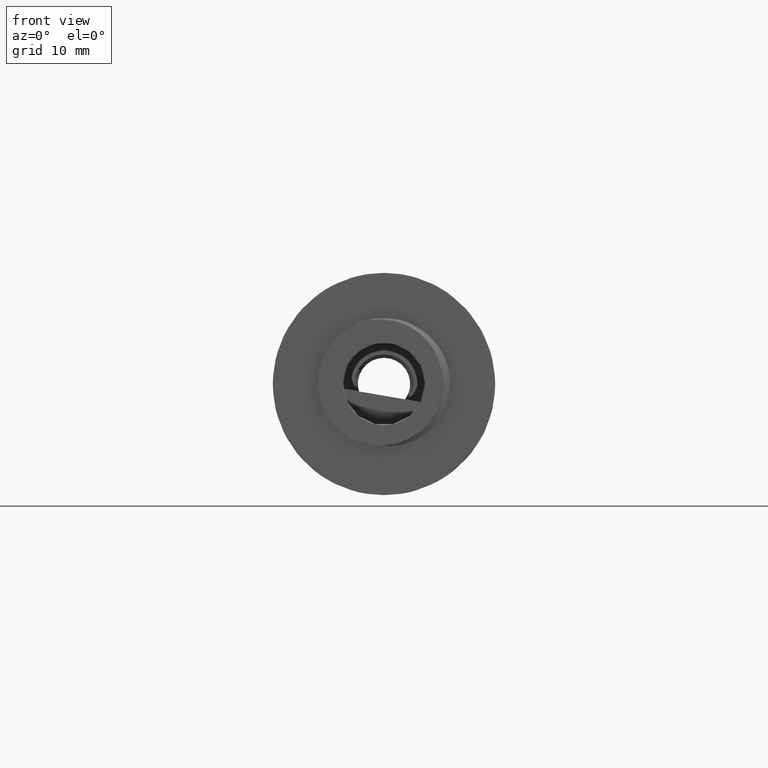
[diagram: clean part render]
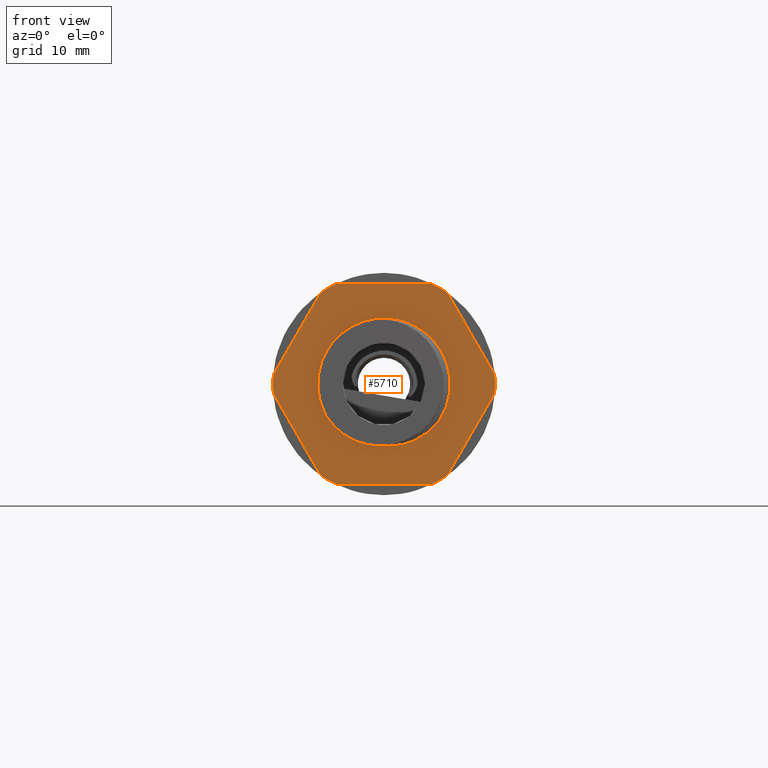
[diagram: same view with one face highlighted and labeled with its STEP entity id]
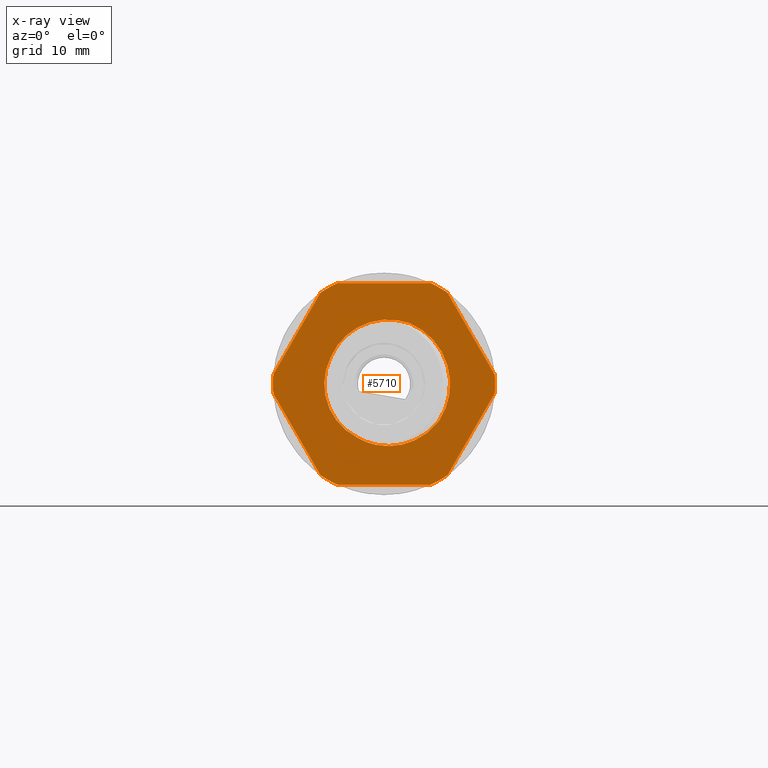
[diagram: x-ray of the same camera — body ghosted, the highlighted face saturated]
A machine part, front view. The second image highlights one B-rep face of the part: STEP entity #5710.
The next image is the same camera in x-ray: the body ghosted, the highlighted face saturated — about 0% of this face is hidden behind the body in this view.
In plain terms, the highlighted planar face has unit normal (0, -1, 0).
Its self-contained STEP definition (entity closure, byte-faithful):
#104 = B_SPLINE_CURVE_WITH_KNOTS ( 'NONE', 3,
 ( #10916, #10910, #10893, #10882, #10905, #10915, #10918, #10914, #10895, #10879, #10906, #10917, #10866, #10881, #10921, #10913, #10911, #10873, #10897, #10885, #10867, #10872 ),
 .UNSPECIFIED., .F., .F.,
 ( 4, 2, 2, 2, 2, 2, 2, 2, 2, 2, 4 ),
 ( 4.753308512845029300E-017, 0.001111364242420281700, 0.001667046363630399400, 0.002222728484840517300, 0.003334092727260750200, 0.004445456969680983500, 0.005556821212101217600, 0.006112503333311335200, 0.006668185454521451800, 0.007779549696941685100, 0.008890913939361916700 ),
 .UNSPECIFIED. ) ;
#135 = B_SPLINE_CURVE_WITH_KNOTS ( 'NONE', 3,
 ( #10828, #10912, #10920, #10880, #10887, #10878, #10899, #10883, #10868, #10869, #10900, #10901, #10884, #10870, #10871, #10874, #10888, #10875, #10891, #10892 ),
 .UNSPECIFIED., .F., .F.,
 ( 4, 2, 2, 2, 2, 2, 2, 2, 2, 4 ),
 ( 9.157138429624037800E-016, 0.001113422710838500700, 0.002226845421676085400, 0.003340268132513672300, 0.003896979487932467100, 0.004453690843351261800, 0.005567113554188848700, 0.006680536265026434800, 0.007793958975864022500, 0.008907381686701609400 ),
 .UNSPECIFIED. ) ;
#136 = B_SPLINE_CURVE_WITH_KNOTS ( 'NONE', 3,
 ( #10961, #10942, #10973, #10970, #10956, #10934, #10954, #10944, #10946, #10976, #10977, #10947, #10925, #10926, #10949, #10951, #10935, #10963 ),
 .UNSPECIFIED., .F., .F.,
 ( 4, 2, 2, 2, 2, 2, 2, 2, 4 ),
 ( 2.638845278160086400E-015, 0.002136493572165413300, 0.003204740358246800500, 0.004272987144328187200, 0.005341233930409574800, 0.005875357323450267800, 0.006409480716490961600, 0.007477727502572348300, 0.008545974288653735900 ),
 .UNSPECIFIED. ) ;
#2858 = FACE_OUTER_BOUND ( 'NONE', #20883, .T. ) ;
#2859 = CARTESIAN_POINT ( 'NONE',  ( -11.25509144583688800, -14.06608847983449600, -10.51000000000000200 ) ) ;
#2861 = DIRECTION ( 'NONE',  ( 0.0000000000000000000, -0.0000000000000000000, -1.000000000000000000 ) ) ;
#2874 = PLANE ( 'NONE',  #20366 ) ;
#2882 = DIRECTION ( 'NONE',  ( 0.0000000000000000000, -1.000000000000000000, 0.0000000000000000000 ) ) ;
#2910 = FACE_BOUND ( 'NONE', #20850, .T. ) ;
#5710 = ADVANCED_FACE ( 'NONE', ( #2910, #2858 ), #2874, .T. ) ;
#6916 = EDGE_CURVE ( 'NONE', #18178, #18218, #7659, .T. ) ;
#6948 = EDGE_CURVE ( 'NONE', #18162, #18151, #7329, .T. ) ;
#6951 = EDGE_CURVE ( 'NONE', #18114, #18159, #7323, .T. ) ;
#6957 = EDGE_CURVE ( 'NONE', #18273, #18254, #7330, .T. ) ;
#6958 = EDGE_CURVE ( 'NONE', #18230, #18273, #10795, .T. ) ;
#6961 = EDGE_CURVE ( 'NONE', #18244, #18275, #7390, .T. ) ;
#6966 = EDGE_CURVE ( 'NONE', #18271, #18244, #104, .T. ) ;
#6968 = EDGE_CURVE ( 'NONE', #18238, #18271, #135, .T. ) ;
#6973 = EDGE_CURVE ( 'NONE', #18275, #18238, #136, .T. ) ;
#6988 = EDGE_CURVE ( 'NONE', #18254, #18232, #11042, .T. ) ;
#6996 = EDGE_CURVE ( 'NONE', #18151, #18114, #11051, .T. ) ;
#6999 = EDGE_CURVE ( 'NONE', #18258, #18162, #11059, .T. ) ;
#7003 = EDGE_CURVE ( 'NONE', #18159, #18178, #11104, .T. ) ;
#7008 = EDGE_CURVE ( 'NONE', #18218, #18248, #11133, .T. ) ;
#7010 = EDGE_CURVE ( 'NONE', #18232, #18258, #7431, .T. ) ;
#7014 = EDGE_CURVE ( 'NONE', #18248, #18230, #7409, .T. ) ;
#7318 = AXIS2_PLACEMENT_3D ( 'NONE', #10765, #10796, #10800 ) ;
#7323 = CIRCLE ( 'NONE', #7325, 10.50000000000000000 ) ;
#7325 = AXIS2_PLACEMENT_3D ( 'NONE', #10775, #10808, #10788 ) ;
#7329 = CIRCLE ( 'NONE', #7318, 10.50000000000000000 ) ;
#7330 = CIRCLE ( 'NONE', #7363, 10.50000000000000000 ) ;
#7343 = VECTOR ( 'NONE', #11112, 1000.000000000000100 ) ;
#7346 = VECTOR ( 'NONE', #11136, 1000.000000000000000 ) ;
#7350 = VECTOR ( 'NONE', #11054, 1000.000000000000000 ) ;
#7353 = VECTOR ( 'NONE', #10833, 1000.000000000000100 ) ;
#7361 = VECTOR ( 'NONE', #11068, 1000.000000000000100 ) ;
#7363 = AXIS2_PLACEMENT_3D ( 'NONE', #10826, #10823, #10848 ) ;
#7376 = AXIS2_PLACEMENT_3D ( 'NONE', #10852, #10829, #10864 ) ;
#7388 = VECTOR ( 'NONE', #11096, 1000.000000000000000 ) ;
#7390 = CIRCLE ( 'NONE', #7376, 6.250000000000023100 ) ;
#7409 = CIRCLE ( 'NONE', #7440, 10.50000000000000000 ) ;
#7431 = CIRCLE ( 'NONE', #7432, 10.50000000000000000 ) ;
#7432 = AXIS2_PLACEMENT_3D ( 'NONE', #11150, #11158, #11159 ) ;
#7440 = AXIS2_PLACEMENT_3D ( 'NONE', #11163, #11151, #11160 ) ;
#7656 = AXIS2_PLACEMENT_3D ( 'NONE', #10617, #10640, #10634 ) ;
#7659 = CIRCLE ( 'NONE', #7656, 10.50000000000000000 ) ;
#10617 = CARTESIAN_POINT ( 'NONE',  ( 3.469446951953614200E-015, -14.06608847983449600, 0.0000000000000000000 ) ) ;
#10634 = DIRECTION ( 'NONE',  ( 0.0000000000000000000, 0.0000000000000000000, 1.000000000000000000 ) ) ;
#10640 = DIRECTION ( 'NONE',  ( -0.0000000000000000000, -1.000000000000000000, -0.0000000000000000000 ) ) ;
#10765 = CARTESIAN_POINT ( 'NONE',  ( 3.469446951953614200E-015, -14.06608847983449600, 0.0000000000000000000 ) ) ;
#10775 = CARTESIAN_POINT ( 'NONE',  ( 3.469446951953614200E-015, -14.06608847983449600, 0.0000000000000000000 ) ) ;
#10788 = DIRECTION ( 'NONE',  ( 6.217248937900878200E-015, 0.0000000000000000000, 1.000000000000000000 ) ) ;
#10795 = LINE ( 'NONE', #10863, #7353 ) ;
#10796 = DIRECTION ( 'NONE',  ( -0.0000000000000000000, -1.000000000000000000, -0.0000000000000000000 ) ) ;
#10800 = DIRECTION ( 'NONE',  ( 0.0000000000000000000, 0.0000000000000000000, 1.000000000000000000 ) ) ;
#10808 = DIRECTION ( 'NONE',  ( -0.0000000000000000000, -1.000000000000000000, -0.0000000000000000000 ) ) ;
#10823 = DIRECTION ( 'NONE',  ( -0.0000000000000000000, -1.000000000000000000, -0.0000000000000000000 ) ) ;
#10826 = CARTESIAN_POINT ( 'NONE',  ( 3.469446951953614200E-015, -14.06608847983449600, 0.0000000000000000000 ) ) ;
#10828 = CARTESIAN_POINT ( 'NONE',  ( -2.556014987226393300, -14.06608847983445400, -5.049390035028454600 ) ) ;
#10829 = DIRECTION ( 'NONE',  ( -0.0000000000000000000, 1.000000000000000000, -0.0000000000000000000 ) ) ;
#10833 = DIRECTION ( 'NONE',  ( -0.5000000000000003300, 0.0000000000000000000, -0.8660254037844383700 ) ) ;
#10848 = DIRECTION ( 'NONE',  ( 0.0000000000000000000, 0.0000000000000000000, 1.000000000000000000 ) ) ;
#10852 = CARTESIAN_POINT ( 'NONE',  ( -0.001271415301873982300, -14.06608847983449600, -0.01986389194044843600 ) ) ;
#10863 = CARTESIAN_POINT ( 'NONE',  ( -5.991173358452394700, -14.06608847983449600, 8.622983346207403700 ) ) ;
#10864 = DIRECTION ( 'NONE',  ( 0.0000000000000000000, 0.0000000000000000000, -1.000000000000000000 ) ) ;
#10866 = CARTESIAN_POINT ( 'NONE',  ( -1.244697211950919900, -14.06608847983450200, 5.865601824258971100 ) ) ;
#10867 = CARTESIAN_POINT ( 'NONE',  ( 2.075953086760118400, -14.06608847983450000, 5.860143918453010400 ) ) ;
#10868 = CARTESIAN_POINT ( 'NONE',  ( -5.093464929041524600, -14.06608847983450000, -2.454278476575086500 ) ) ;
#10869 = CARTESIAN_POINT ( 'NONE',  ( -5.241492948334370200, -14.06608847983450500, -2.116739528690658700 ) ) ;
#10870 = CARTESIAN_POINT ( 'NONE',  ( -5.646079389698330800, -14.06608847983451800, -0.3263330766466495100 ) ) ;
#10871 = CARTESIAN_POINT ( 'NONE',  ( -5.654028654558497500, -14.06608847983449300, 0.04847541841886495600 ) ) ;
#10872 = CARTESIAN_POINT ( 'NONE',  ( 2.430785688772144000, -14.06608847983666700, 5.737531199810977300 ) ) ;
#10873 = CARTESIAN_POINT ( 'NONE',  ( 0.5997918420392075500, -14.06608847983446100, 6.087039369540713500 ) ) ;
#10874 = CARTESIAN_POINT ( 'NONE',  ( -5.597218713415894200, -14.06608847983449500, 0.7824505751103197900 ) ) ;
#10875 = CARTESIAN_POINT ( 'NONE',  ( -5.334761052539318100, -14.06608847983449800, 1.854409501786928600 ) ) ;
#10878 = CARTESIAN_POINT ( 'NONE',  ( -4.530710736436696500, -14.06608847983450200, -3.402839493712816100 ) ) ;
#10879 = CARTESIAN_POINT ( 'NONE',  ( -2.613154575827999300, -14.06608847983449300, 5.283720216108189800 ) ) ;
#10880 = CARTESIAN_POINT ( 'NONE',  ( -3.783189877181321500, -14.06608847983449600, -4.221834685257294800 ) ) ;
#10881 = CARTESIAN_POINT ( 'NONE',  ( -0.6965392576370360600, -14.06608847983450200, 5.984211272495369500 ) ) ;
#10882 = CARTESIAN_POINT ( 'NONE',  ( -4.395645206455665000, -14.06608847983453000, 3.667462700156601100 ) ) ;
#10883 = CARTESIAN_POINT ( 'NONE',  ( -5.011561107928017100, -14.06608847983449100, -2.618608401379613600 ) ) ;
#10884 = CARTESIAN_POINT ( 'NONE',  ( -5.558668579500311700, -14.06608847983451800, -1.055777589283754200 ) ) ;
#10885 = CARTESIAN_POINT ( 'NONE',  ( 1.713167674378131000, -14.06608847983450300, 5.949927019153210300 ) ) ;
#10887 = CARTESIAN_POINT ( 'NONE',  ( -4.048912845655306300, -14.06608847983450200, -3.966627545532567500 ) ) ;
#10888 = CARTESIAN_POINT ( 'NONE',  ( -5.533471409992672300, -14.06608847983449500, 1.143654773013693700 ) ) ;
#10891 = CARTESIAN_POINT ( 'NONE',  ( -5.199284166128092200, -14.06608847983449800, 2.203179932231512900 ) ) ;
#10892 = CARTESIAN_POINT ( 'NONE',  ( -5.030797558390204900, -14.06608847983449500, 2.534879679983428300 ) ) ;
#10893 = CARTESIAN_POINT ( 'NONE',  ( -4.708003725185880800, -14.06608847983453200, 3.207559341709725700 ) ) ;
#10895 = CARTESIAN_POINT ( 'NONE',  ( -3.231612043218866400, -14.06608847983449100, 4.868905999377564500 ) ) ;
#10897 = CARTESIAN_POINT ( 'NONE',  ( 0.9717246606539607900, -14.06608847983450200, 6.063971988086938000 ) ) ;
#10899 = CARTESIAN_POINT ( 'NONE',  ( -4.742527824873182100, -14.06608847983449300, -3.098475129059690600 ) ) ;
#10900 = CARTESIAN_POINT ( 'NONE',  ( -5.307913433819595500, -14.06608847983449300, -1.942541814069872300 ) ) ;
#10901 = CARTESIAN_POINT ( 'NONE',  ( -5.479918202694160600, -14.06608847983449600, -1.414297530331733600 ) ) ;
#10905 = CARTESIAN_POINT ( 'NONE',  ( -4.283768454195605800, -14.06608847983450300, 3.815839150665145200 ) ) ;
#10906 = CARTESIAN_POINT ( 'NONE',  ( -2.280613796726286500, -14.06608847983449500, 5.463517478454592800 ) ) ;
#10910 = CARTESIAN_POINT ( 'NONE',  ( -4.885463418721905700, -14.06608847983449800, 2.881416926146142600 ) ) ;
#10911 = CARTESIAN_POINT ( 'NONE',  ( 0.04410614421456691300, -14.06608847983446100, 6.072256805601171000 ) ) ;
#10912 = CARTESIAN_POINT ( 'NONE',  ( -2.887714734977474800, -14.06608847983449800, -4.880903427291006100 ) ) ;
#10913 = CARTESIAN_POINT ( 'NONE',  ( -0.1409740477929463700, -14.06608847983450200, 6.059190878444783700 ) ) ;
#10914 = CARTESIAN_POINT ( 'NONE',  ( -3.518839575351778500, -14.06608847983450300, 4.634239500241541500 ) ) ;
#10915 = CARTESIAN_POINT ( 'NONE',  ( -4.044152376250829100, -14.06608847983450200, 4.102521735097766100 ) ) ;
#10916 = CARTESIAN_POINT ( 'NONE',  ( -5.030797558390204900, -14.06608847983449500, 2.534879679983428300 ) ) ;
#10917 = CARTESIAN_POINT ( 'NONE',  ( -1.597941503249843900, -14.06608847983450200, 5.753243284945129200 ) ) ;
#10918 = CARTESIAN_POINT ( 'NONE',  ( -3.916550213557222500, -14.06608847983449600, 4.241191011326646900 ) ) ;
#10920 = CARTESIAN_POINT ( 'NONE',  ( -3.202571057573868200, -14.06608847983449600, -4.679386013422608000 ) ) ;
#10921 = CARTESIAN_POINT ( 'NONE',  ( -0.5108094432423578900, -14.06608847983450300, 6.015233191870499300 ) ) ;
#10925 = CARTESIAN_POINT ( 'NONE',  ( -0.3761684524182317700, -14.06608847983449600, -5.825382040861222200 ) ) ;
#10926 = CARTESIAN_POINT ( 'NONE',  ( -0.9083931835608214400, -14.06608847983449800, -5.735631297805618100 ) ) ;
#10934 = CARTESIAN_POINT ( 'NONE',  ( 2.281500934975532400, -14.06608847983449800, -5.585565014746630500 ) ) ;
#10935 = CARTESIAN_POINT ( 'NONE',  ( -2.246905817468338700, -14.06608847983449800, -5.237286638988480900 ) ) ;
#10942 = CARTESIAN_POINT ( 'NONE',  ( 4.711934842229438500, -14.06608847983449300, -4.113369069042416700 ) ) ;
#10944 = CARTESIAN_POINT ( 'NONE',  ( 1.229785335798736500, -14.06608847983449800, -5.829041864965231100 ) ) ;
#10946 = CARTESIAN_POINT ( 'NONE',  ( 0.8746189397776654700, -14.06608847983451900, -5.867132083019239300 ) ) ;
#10947 = CARTESIAN_POINT ( 'NONE',  ( -0.1960358753812514200, -14.06608847983450200, -5.846961605796178900 ) ) ;
#10949 = CARTESIAN_POINT ( 'NONE',  ( -1.252716455601828900, -14.06608847983449300, -5.643136600911389200 ) ) ;
#10951 = CARTESIAN_POINT ( 'NONE',  ( -1.920959458135498300, -14.06608847983449600, -5.394639754303674400 ) ) ;
#10954 = CARTESIAN_POINT ( 'NONE',  ( 1.937611125550231500, -14.06608847983450200, -5.687487378748873100 ) ) ;
#10956 = CARTESIAN_POINT ( 'NONE',  ( 2.943462258832959300, -14.06608847983449800, -5.323890581944527700 ) ) ;
#10961 = CARTESIAN_POINT ( 'NONE',  ( 5.159096094120478400, -14.06608847983449600, -3.545925032604125600 ) ) ;
#10963 = CARTESIAN_POINT ( 'NONE',  ( -2.556014987226393300, -14.06608847983445400, -5.049390035028454600 ) ) ;
#10970 = CARTESIAN_POINT ( 'NONE',  ( 3.262668639817851700, -14.06608847983450500, -5.163914377061925800 ) ) ;
#10973 = CARTESIAN_POINT ( 'NONE',  ( 4.183362287833463500, -14.06608847983450200, -4.592602553804830700 ) ) ;
#10976 = CARTESIAN_POINT ( 'NONE',  ( 0.3400606285474798700, -14.06608847983452300, -5.877102248224379500 ) ) ;
#10977 = CARTESIAN_POINT ( 'NONE',  ( 0.1615768454921796000, -14.06608847983450000, -5.872663177708291800 ) ) ;
#11039 = CARTESIAN_POINT ( 'NONE',  ( -10.46330931345195300, -14.06608847983449600, -0.8770166537925873100 ) ) ;
#11042 = LINE ( 'NONE', #11039, #7350 ) ;
#11051 = LINE ( 'NONE', #11053, #7361 ) ;
#11053 = CARTESIAN_POINT ( 'NONE',  ( 5.991173358452376100, -14.06608847983449600, -8.622983346207421500 ) ) ;
#11054 = DIRECTION ( 'NONE',  ( 0.5000000000000008900, 0.0000000000000000000, -0.8660254037844381500 ) ) ;
#11059 = LINE ( 'NONE', #11075, #7388 ) ;
#11068 = DIRECTION ( 'NONE',  ( 0.5000000000000002200, 0.0000000000000000000, 0.8660254037844384900 ) ) ;
#11075 = CARTESIAN_POINT ( 'NONE',  ( 8.673617379884035500E-016, -14.06608847983449600, -9.500000000000016000 ) ) ;
#11096 = DIRECTION ( 'NONE',  ( 1.000000000000000000, 0.0000000000000000000, 0.0000000000000000000 ) ) ;
#11104 = LINE ( 'NONE', #11127, #7343 ) ;
#11112 = DIRECTION ( 'NONE',  ( -0.4999999999999997800, 0.0000000000000000000, 0.8660254037844388200 ) ) ;
#11127 = CARTESIAN_POINT ( 'NONE',  ( 10.46330931345196000, -14.06608847983449600, 0.8770166537925940800 ) ) ;
#11133 = LINE ( 'NONE', #11153, #7346 ) ;
#11136 = DIRECTION ( 'NONE',  ( -1.000000000000000000, -0.0000000000000000000, -0.0000000000000000000 ) ) ;
#11150 = CARTESIAN_POINT ( 'NONE',  ( 3.469446951953614200E-015, -14.06608847983449600, 0.0000000000000000000 ) ) ;
#11151 = DIRECTION ( 'NONE',  ( -0.0000000000000000000, -1.000000000000000000, -0.0000000000000000000 ) ) ;
#11153 = CARTESIAN_POINT ( 'NONE',  ( 8.673617379884035500E-016, -14.06608847983449600, 9.500000000000016000 ) ) ;
#11158 = DIRECTION ( 'NONE',  ( -0.0000000000000000000, -1.000000000000000000, -0.0000000000000000000 ) ) ;
#11159 = DIRECTION ( 'NONE',  ( 0.0000000000000000000, 0.0000000000000000000, 1.000000000000000000 ) ) ;
#11160 = DIRECTION ( 'NONE',  ( 8.881784197001252300E-016, 0.0000000000000000000, 1.000000000000000000 ) ) ;
#11163 = CARTESIAN_POINT ( 'NONE',  ( 3.469446951953614200E-015, -14.06608847983449600, 0.0000000000000000000 ) ) ;
#18114 = VERTEX_POINT ( 'NONE', #20217 ) ;
#18151 = VERTEX_POINT ( 'NONE', #20175 ) ;
#18159 = VERTEX_POINT ( 'NONE', #20242 ) ;
#18162 = VERTEX_POINT ( 'NONE', #20181 ) ;
#18178 = VERTEX_POINT ( 'NONE', #20218 ) ;
#18218 = VERTEX_POINT ( 'NONE', #20294 ) ;
#18230 = VERTEX_POINT ( 'NONE', #20292 ) ;
#18232 = VERTEX_POINT ( 'NONE', #20343 ) ;
#18238 = VERTEX_POINT ( 'NONE', #20339 ) ;
#18244 = VERTEX_POINT ( 'NONE', #20283 ) ;
#18248 = VERTEX_POINT ( 'NONE', #20334 ) ;
#18254 = VERTEX_POINT ( 'NONE', #20256 ) ;
#18258 = VERTEX_POINT ( 'NONE', #20268 ) ;
#18271 = VERTEX_POINT ( 'NONE', #20329 ) ;
#18273 = VERTEX_POINT ( 'NONE', #20300 ) ;
#18275 = VERTEX_POINT ( 'NONE', #20303 ) ;
#20175 = CARTESIAN_POINT ( 'NONE',  ( 5.991173358452377900, -14.06608847983449600, -8.622983346207421500 ) ) ;
#20181 = CARTESIAN_POINT ( 'NONE',  ( 4.472135954999550300, -14.06608847983449600, -9.500000000000016000 ) ) ;
#20217 = CARTESIAN_POINT ( 'NONE',  ( 10.46330931345196200, -14.06608847983449600, -0.8770166537925807600 ) ) ;
#20218 = CARTESIAN_POINT ( 'NONE',  ( 5.991173358452396500, -14.06608847983449600, 8.622983346207407300 ) ) ;
#20242 = CARTESIAN_POINT ( 'NONE',  ( 10.46330931345196000, -14.06608847983449600, 0.8770166537925968600 ) ) ;
#20256 = CARTESIAN_POINT ( 'NONE',  ( -10.46330931345195500, -14.06608847983449600, -0.8770166537925866400 ) ) ;
#20268 = CARTESIAN_POINT ( 'NONE',  ( -4.472135954999541400, -14.06608847983449600, -9.500000000000016000 ) ) ;
#20283 = CARTESIAN_POINT ( 'NONE',  ( 2.430785688772144000, -14.06608847983666700, 5.737531199810977300 ) ) ;
#20292 = CARTESIAN_POINT ( 'NONE',  ( -5.991173358452396500, -14.06608847983449600, 8.622983346207403700 ) ) ;
#20294 = CARTESIAN_POINT ( 'NONE',  ( 4.472135954999550300, -14.06608847983449600, 9.500000000000016000 ) ) ;
#20300 = CARTESIAN_POINT ( 'NONE',  ( -10.46330931345195100, -14.06608847983449600, 0.8770166537926155100 ) ) ;
#20303 = CARTESIAN_POINT ( 'NONE',  ( 5.159096094120478400, -14.06608847983449600, -3.545925032604125600 ) ) ;
#20329 = CARTESIAN_POINT ( 'NONE',  ( -5.030797558390204900, -14.06608847983449500, 2.534879679983428300 ) ) ;
#20334 = CARTESIAN_POINT ( 'NONE',  ( -4.472135954999544100, -14.06608847983449600, 9.500000000000016000 ) ) ;
#20339 = CARTESIAN_POINT ( 'NONE',  ( -2.556014987226393300, -14.06608847983445400, -5.049390035028454600 ) ) ;
#20343 = CARTESIAN_POINT ( 'NONE',  ( -5.991173358452359200, -14.06608847983449600, -8.622983346207428600 ) ) ;
#20366 = AXIS2_PLACEMENT_3D ( 'NONE', #2859, #2882, #2861 ) ;
#20729 = ORIENTED_EDGE ( 'NONE', *, *, #6966, .T. ) ;
#20735 = ORIENTED_EDGE ( 'NONE', *, *, #6961, .T. ) ;
#20738 = ORIENTED_EDGE ( 'NONE', *, *, #7014, .T. ) ;
#20741 = ORIENTED_EDGE ( 'NONE', *, *, #6973, .T. ) ;
#20743 = ORIENTED_EDGE ( 'NONE', *, *, #6968, .T. ) ;
#20744 = ORIENTED_EDGE ( 'NONE', *, *, #7010, .T. ) ;
#20749 = ORIENTED_EDGE ( 'NONE', *, *, #7003, .T. ) ;
#20751 = ORIENTED_EDGE ( 'NONE', *, *, #6957, .T. ) ;
#20752 = ORIENTED_EDGE ( 'NONE', *, *, #6988, .T. ) ;
#20753 = ORIENTED_EDGE ( 'NONE', *, *, #6916, .T. ) ;
#20754 = ORIENTED_EDGE ( 'NONE', *, *, #6951, .T. ) ;
#20763 = ORIENTED_EDGE ( 'NONE', *, *, #7008, .T. ) ;
#20767 = ORIENTED_EDGE ( 'NONE', *, *, #6999, .T. ) ;
#20769 = ORIENTED_EDGE ( 'NONE', *, *, #6948, .T. ) ;
#20770 = ORIENTED_EDGE ( 'NONE', *, *, #6996, .T. ) ;
#20774 = ORIENTED_EDGE ( 'NONE', *, *, #6958, .T. ) ;
#20850 = EDGE_LOOP ( 'NONE', ( #20741, #20743, #20729, #20735 ) ) ;
#20883 = EDGE_LOOP ( 'NONE', ( #20774, #20751, #20752, #20744, #20767, #20769, #20770, #20754, #20749, #20753, #20763, #20738 ) ) ;